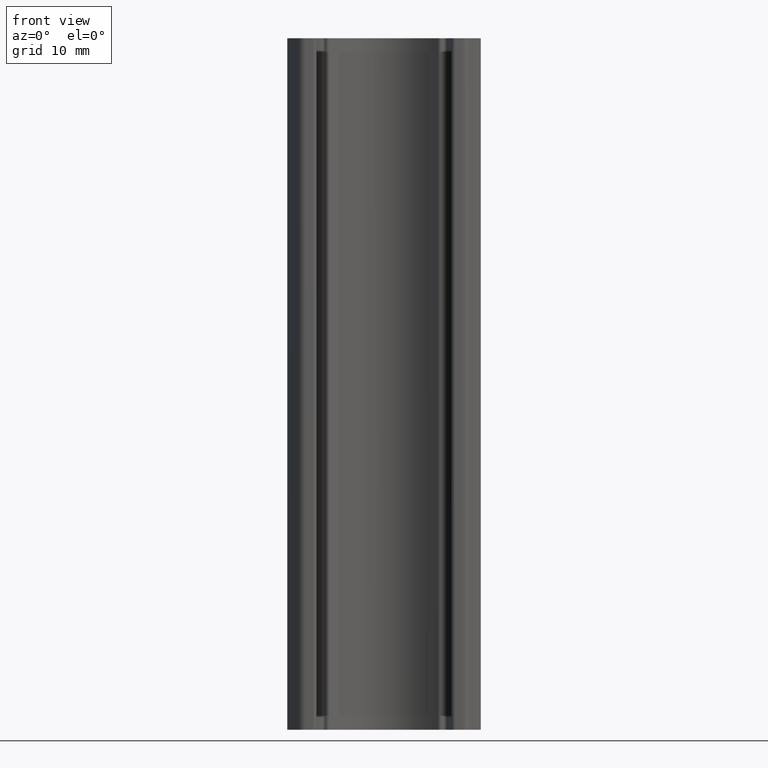
[diagram: clean part render]
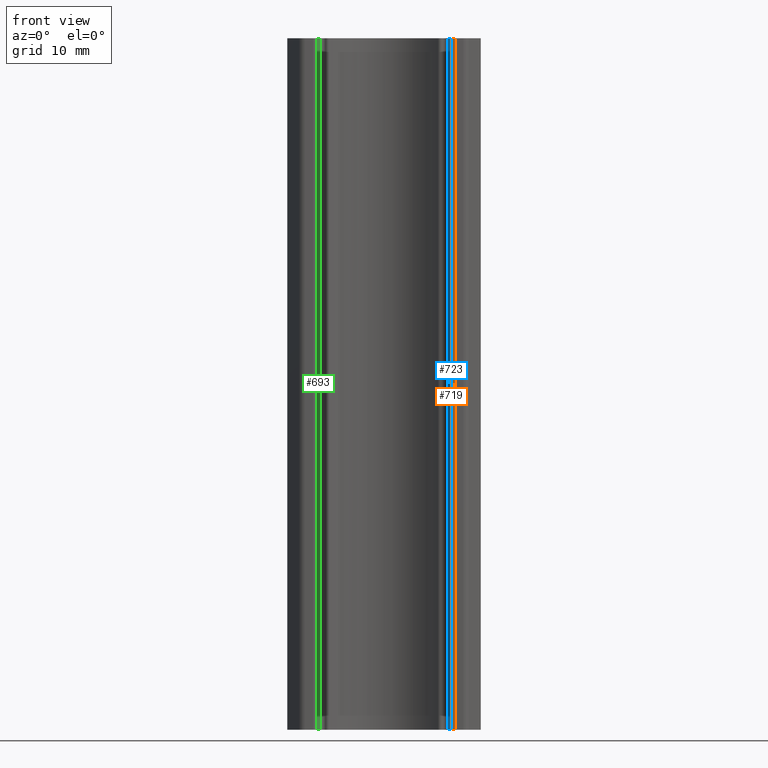
[diagram: same view with three faces highlighted in distinct colors, each labeled with its STEP entity id]
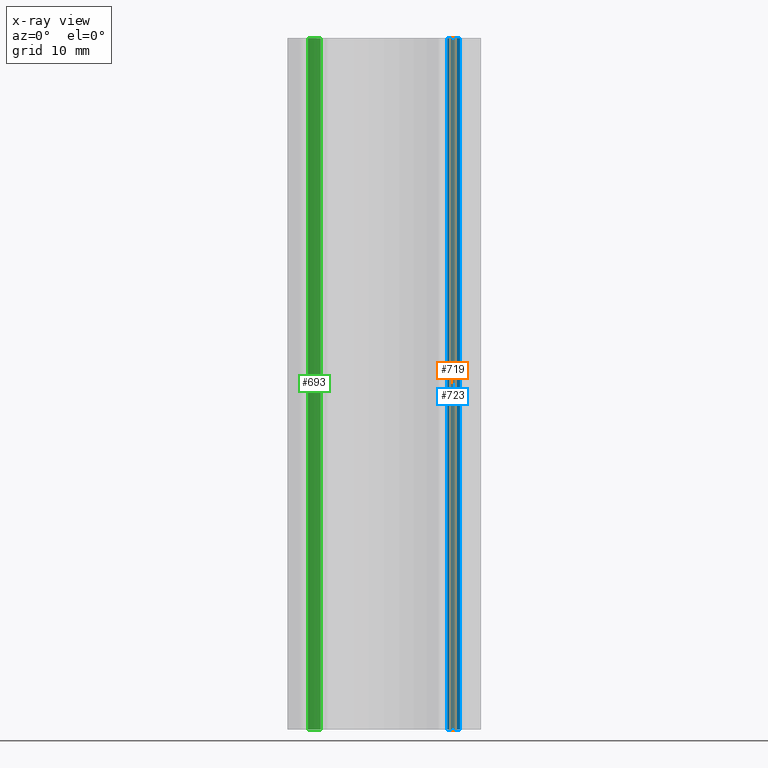
[diagram: x-ray of the same camera — body ghosted, the three highlighted faces saturated]
A machine part, front view with three faces highlighted in distinct colors.
The next image is the same camera in x-ray (body ghosted, the three faces saturated) — at least one of them is partly hidden behind the body in this view.
Their STEP definitions:

[orange] entity #719 — the highlighted cylindrical surface (edge-blend (fillet) strip) has radius 0.5 mm, axis along (0, 0, 1).
#56=FACE_OUTER_BOUND('',#94,.T.);
#94=EDGE_LOOP('',(#562,#563,#564,#565));
#154=LINE('',#1226,#212);
#155=LINE('',#1232,#213);
#212=VECTOR('',#995,100.);
#213=VECTOR('',#1002,100.);
#254=CIRCLE('',#794,0.499999999998);
#255=CIRCLE('',#795,0.499999999998);
#326=VERTEX_POINT('',#1222);
#327=VERTEX_POINT('',#1224);
#328=VERTEX_POINT('',#1228);
#329=VERTEX_POINT('',#1230);
#426=EDGE_CURVE('',#326,#327,#154,.T.);
#427=EDGE_CURVE('',#326,#328,#254,.T.);
#428=EDGE_CURVE('',#329,#327,#255,.T.);
#429=EDGE_CURVE('',#328,#329,#155,.T.);
#562=ORIENTED_EDGE('',*,*,#427,.F.);
#563=ORIENTED_EDGE('',*,*,#426,.T.);
#564=ORIENTED_EDGE('',*,*,#428,.F.);
#565=ORIENTED_EDGE('',*,*,#429,.F.);
#683=CYLINDRICAL_SURFACE('',#793,0.499999999998);
#719=ADVANCED_FACE('',(#56),#683,.T.);
#793=AXIS2_PLACEMENT_3D('',#1227,#996,#997);
#794=AXIS2_PLACEMENT_3D('',#1229,#998,#999);
#795=AXIS2_PLACEMENT_3D('',#1231,#1000,#1001);
#995=DIRECTION('',(0.,0.,1.));
#996=DIRECTION('center_axis',(0.,0.,1.));
#997=DIRECTION('ref_axis',(0.986549707538145,-0.163461538462113,0.));
#998=DIRECTION('center_axis',(0.,0.,-1.));
#999=DIRECTION('ref_axis',(0.986549707538145,-0.163461538462113,0.));
#1000=DIRECTION('center_axis',(0.,0.,1.));
#1001=DIRECTION('ref_axis',(0.986549707538145,-0.163461538462113,0.));
#1002=DIRECTION('',(0.,0.,1.));
#1222=CARTESIAN_POINT('',(10.2601155475149,-2.19999976623481,0.));
#1224=CARTESIAN_POINT('',(10.2601155475149,-2.19999976623481,100.));
#1226=CARTESIAN_POINT('',(10.2601155475149,-2.19999976623481,0.));
#1227=CARTESIAN_POINT('Origin',(10.2601155475149,-1.69999976623681,0.));
#1228=CARTESIAN_POINT('',(9.76684069374785,-1.61826899700608,0.));
#1229=CARTESIAN_POINT('Origin',(10.2601155475149,-1.69999976623681,0.));
#1230=CARTESIAN_POINT('',(9.76684069374785,-1.61826899700608,100.));
#1231=CARTESIAN_POINT('Origin',(10.2601155475149,-1.69999976623681,100.));
#1232=CARTESIAN_POINT('',(9.76684069374785,-1.61826899700608,0.));

[blue] entity #723 — the highlighted cylindrical surface (partial cylindrical patch) has radius 11 mm, axis along (0, 0, 1).
#60=FACE_OUTER_BOUND('',#98,.T.);
#98=EDGE_LOOP('',(#578,#579,#580,#581));
#158=LINE('',#1250,#216);
#159=LINE('',#1256,#217);
#216=VECTOR('',#1023,100.);
#217=VECTOR('',#1030,100.);
#262=CIRCLE('',#806,10.9999999999547);
#263=CIRCLE('',#807,10.9999999999547);
#334=VERTEX_POINT('',#1246);
#335=VERTEX_POINT('',#1248);
#336=VERTEX_POINT('',#1252);
#337=VERTEX_POINT('',#1254);
#438=EDGE_CURVE('',#334,#335,#158,.T.);
#439=EDGE_CURVE('',#334,#336,#262,.T.);
#440=EDGE_CURVE('',#337,#335,#263,.T.);
#441=EDGE_CURVE('',#336,#337,#159,.T.);
#578=ORIENTED_EDGE('',*,*,#439,.F.);
#579=ORIENTED_EDGE('',*,*,#438,.T.);
#580=ORIENTED_EDGE('',*,*,#440,.F.);
#581=ORIENTED_EDGE('',*,*,#441,.F.);
#687=CYLINDRICAL_SURFACE('',#805,10.9999999999547);
#723=ADVANCED_FACE('',(#60),#687,.F.);
#805=AXIS2_PLACEMENT_3D('',#1251,#1024,#1025);
#806=AXIS2_PLACEMENT_3D('',#1253,#1026,#1027);
#807=AXIS2_PLACEMENT_3D('',#1255,#1028,#1029);
#1023=DIRECTION('',(0.,0.,1.));
#1024=DIRECTION('center_axis',(0.,0.,1.));
#1025=DIRECTION('ref_axis',(0.998865569713504,0.0476190470391493,0.));
#1026=DIRECTION('center_axis',(0.,0.,1.));
#1027=DIRECTION('ref_axis',(0.998865569713504,0.0476190470391493,0.));
#1028=DIRECTION('center_axis',(0.,0.,-1.));
#1029=DIRECTION('ref_axis',(0.998865569713504,0.0476190470391493,0.));
#1030=DIRECTION('',(0.,0.,1.));
#1246=CARTESIAN_POINT('',(10.9875212668059,0.523809517428609,0.));
#1248=CARTESIAN_POINT('',(10.9875212668059,0.523809517428609,100.));
#1250=CARTESIAN_POINT('',(10.9875212668059,0.523809517428609,0.));
#1251=CARTESIAN_POINT('Origin',(0.,0.,0.));
#1252=CARTESIAN_POINT('',(9.15042850028913,6.10488806286757,0.));
#1253=CARTESIAN_POINT('Origin',(0.,0.,0.));
#1254=CARTESIAN_POINT('',(9.15042850028913,6.10488806286757,100.));
#1255=CARTESIAN_POINT('Origin',(0.,0.,100.));
#1256=CARTESIAN_POINT('',(9.15042850028913,6.10488806286757,0.));

[green] entity #693 — the highlighted cylindrical surface (partial cylindrical patch) has radius 11 mm, axis along (0, 0, 1).
#30=FACE_OUTER_BOUND('',#68,.T.);
#68=EDGE_LOOP('',(#458,#459,#460,#461));
#106=LINE('',#1070,#164);
#107=LINE('',#1076,#165);
#164=VECTOR('',#835,100.);
#165=VECTOR('',#842,100.);
#224=CIRCLE('',#738,10.9999999999542);
#225=CIRCLE('',#739,10.9999999999542);
#274=VERTEX_POINT('',#1066);
#275=VERTEX_POINT('',#1068);
#276=VERTEX_POINT('',#1072);
#277=VERTEX_POINT('',#1074);
#348=EDGE_CURVE('',#274,#275,#106,.T.);
#349=EDGE_CURVE('',#274,#276,#224,.T.);
#350=EDGE_CURVE('',#277,#275,#225,.T.);
#351=EDGE_CURVE('',#276,#277,#107,.T.);
#458=ORIENTED_EDGE('',*,*,#349,.F.);
#459=ORIENTED_EDGE('',*,*,#348,.T.);
#460=ORIENTED_EDGE('',*,*,#350,.F.);
#461=ORIENTED_EDGE('',*,*,#351,.F.);
#668=CYLINDRICAL_SURFACE('',#737,10.9999999999542);
#693=ADVANCED_FACE('',(#30),#668,.F.);
#737=AXIS2_PLACEMENT_3D('',#1071,#836,#837);
#738=AXIS2_PLACEMENT_3D('',#1073,#838,#839);
#739=AXIS2_PLACEMENT_3D('',#1075,#840,#841);
#835=DIRECTION('',(0.,0.,1.));
#836=DIRECTION('center_axis',(0.,0.,1.));
#837=DIRECTION('ref_axis',(-0.831855629978779,0.55499208181073,0.));
#838=DIRECTION('center_axis',(0.,0.,1.));
#839=DIRECTION('ref_axis',(-0.831855629978779,0.55499208181073,0.));
#840=DIRECTION('center_axis',(0.,0.,-1.));
#841=DIRECTION('ref_axis',(-0.831855629978779,0.55499208181073,0.));
#842=DIRECTION('',(0.,0.,1.));
#1066=CARTESIAN_POINT('',(-9.1504119297254,6.10491289989242,0.));
#1068=CARTESIAN_POINT('',(-9.1504119297254,6.10491289989242,100.));
#1070=CARTESIAN_POINT('',(-9.1504119297254,6.10491289989242,0.));
#1071=CARTESIAN_POINT('Origin',(3.03868041839905E-12,-1.60427227058335E-13,
0.));
#1072=CARTESIAN_POINT('',(-10.9875201788319,0.523832338335892,0.));
#1073=CARTESIAN_POINT('Origin',(3.03868041839905E-12,-1.60427227058335E-13,
0.));
#1074=CARTESIAN_POINT('',(-10.9875201788319,0.523832338335892,100.));
#1075=CARTESIAN_POINT('Origin',(3.03868041839905E-12,-1.60427227058335E-13,
100.));
#1076=CARTESIAN_POINT('',(-10.9875201788319,0.523832338335892,0.));